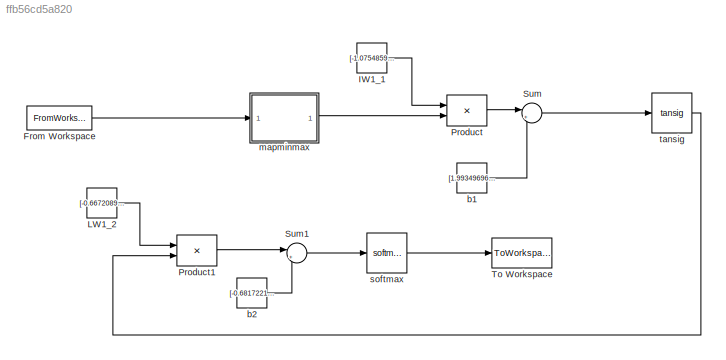
MODEL slx_ffb56cd5a820
KIND model
CONFIG AbsTol = auto
CONFIG FixedStep = auto
CONFIG MaxStep = auto
CONFIG MinStep = auto
CONFIG RelTol = 1e-3
CONFIG SampleTimeConstraint = Unconstrained
CONFIG Solver = VariableStepAuto
CONFIG SolverMode = Auto
CONFIG SolverName = VariableStepAuto
CONFIG StartTime = 0.0
CONFIG StopTime = 10.0
WORKSPACE source: MAT-file member
WORKSPACE import_v: struct (value not decoded)
BLOCK [FromWorkspace] From Workspace
  Interpolate = off
  OutputAfterFinalValue = Holding final value
  SampleTime = 1
  VariableName = import_v
  ZeroCross = on
BLOCK [Constant] IW1_1
  Value = [-1.075485942302552 0.56783093352418523 1.1861699927227722 -0.67312082676352258 0.54487935699510082 0.28413201683782935 -0.63426616880718412 -0.21218461262465882 -0.50293908638899765;-0.50240598464017727 1.5545183039443331 0.14203299976813949 0.24694077398434233 -0.50903055324968316 0.9354735433454151 0.20939333348497802 -0.31950925685640902 -0.33666789846172335;-0.32237685034948838 -0.46272848405...<+1429ch>
  VectorParams1D = off
BLOCK [Constant] LW1_2
  Value = [-0.66720897282927016 -0.16961271341372436 -0.37582826038163092 0.41983097412372389 1.307008398414726 0.52840682521742 0.23042526738577751 1.4846703968821726 0.12367581026746308 -1.1431179987840987;0.68007578977731342 0.49220456586120093 0.9752452584755894 -1.6066931625538083 -0.97083511792269739 -0.31305611881371187 0.040399999940958463 0.13173613830551498 -0.27026576373346828 -0.4058992843826244...<+2ch>
  VectorParams1D = off
BLOCK [Product] Product
  InputSameDT = off
  Multiplication = Matrix(*)
  OutDataTypeStr = Inherit: Inherit via internal rule
  Ports = [2, 1]
  RndMeth = Floor
  SaturateOnIntegerOverflow = off
BLOCK [Product] Product1
  InputSameDT = off
  Multiplication = Matrix(*)
  OutDataTypeStr = Inherit: Inherit via internal rule
  Ports = [2, 1]
  RndMeth = Floor
  SaturateOnIntegerOverflow = off
BLOCK [Sum] Sum
  IconShape = round
  InputSameDT = off
  Inputs = |++
  OutDataTypeStr = Inherit: Inherit via internal rule
  Ports = [2, 1]
  SaturateOnIntegerOverflow = off
BLOCK [Sum] Sum1
  IconShape = round
  InputSameDT = off
  Inputs = |++
  OutDataTypeStr = Inherit: Inherit via internal rule
  Ports = [2, 1]
  SaturateOnIntegerOverflow = off
BLOCK [ToWorkspace] To Workspace
  FixptAsFi = on
  MaxDataPoints = inf
  Ports = [1]
  SampleTime = 1
  Save2DSignal = 3-D array (concatenate along third dimension)
  VariableName = export_v
BLOCK [Constant] b1
  Value = [1.9934969655592425;1.3084180997093724;1.2991334934121952;0.52921677690122282;0.91302777233652421;0.60251567725229038;-0.39092029979513704;0.80029764701106709;-1.4204505987093436;1.270467152486856]
  VectorParams1D = off
BLOCK [Constant] b2
  Value = [-0.68172212276808175;-0.57393360455441689]
  VectorParams1D = off
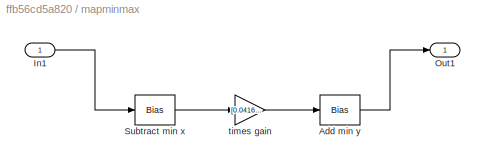
BLOCK [SubSystem] mapminmax
  Ports = [1, 1]
  RequestExecContextInheritance = off
  Variant = off
BLOCK [Bias] mapminmax/Add min y
  Bias = -1
  SaturateOnIntegerOverflow = off
BLOCK [Inport] mapminmax/In1
  IconDisplay = Port number
BLOCK [Outport] mapminmax/Out1
  IconDisplay = Port number
BLOCK [Bias] mapminmax/Subtract min x
  Bias = -[29;0;1;94;126;0;0;71;0]
  SaturateOnIntegerOverflow = off
BLOCK [Gain] mapminmax/times gain
  Gain = [0.0416666666666667;2;0.666666666666667;0.0188679245283019;0.0045662100456621;2;2;0.0152671755725191;2]
  OutDataTypeStr = Inherit: Inherit via internal rule
  ParamDataTypeStr = Inherit: Inherit via internal rule
  SaturateOnIntegerOverflow = off
BLOCK [Reference] softmax  REF=neural/Transfer Functions/softmax
  Ports = [1, 1]
  SourceBlock = neural/Transfer Functions/softmax
  SourceType = SOFTMAX
BLOCK [Reference] tansig  REF=neural/Transfer Functions/tansig
  Ports = [1, 1]
  SourceBlock = neural/Transfer Functions/tansig
  SourceType = TANSIG
LINE From Workspace:1 -> mapminmax:1
LINE IW1_1:1 -> Product:1
LINE LW1_2:1 -> Product1:1
LINE Product1:1 -> Sum1:1
LINE Product:1 -> Sum:1
LINE Sum1:1 -> softmax:1
LINE Sum:1 -> tansig:1
LINE b1:1 -> Sum:2
LINE b2:1 -> Sum1:2
LINE mapminmax/Add min y:1 -> mapminmax/Out1:1
LINE mapminmax/In1:1 -> mapminmax/Subtract min x:1
LINE mapminmax/Subtract min x:1 -> mapminmax/times gain:1
LINE mapminmax/times gain:1 -> mapminmax/Add min y:1
LINE mapminmax:1 -> Product:2
LINE softmax:1 -> To Workspace:1
LINE tansig:1 -> Product1:2
